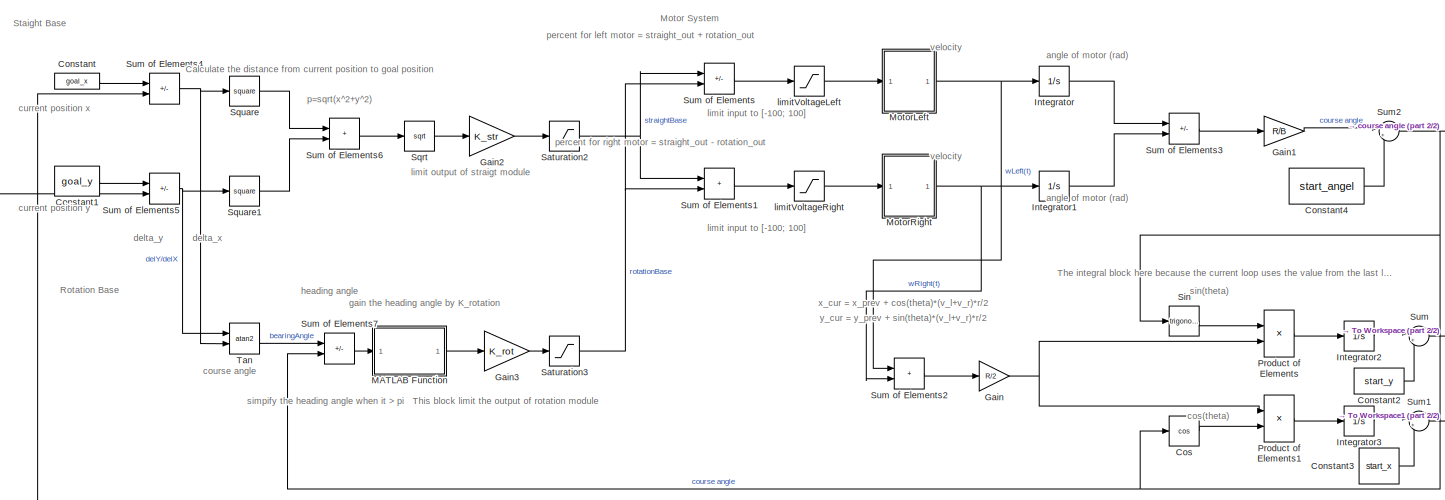
[diagram: root canvas - part 1/2, most of the canvas]
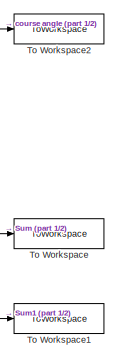
[diagram: root canvas - part 2/2, middle right region]
MODEL slx_19adb0c563d2
KIND model
CONFIG AbsTol = auto
CONFIG EnableMultiTasking = off
CONFIG FixedStep = 0.013
CONFIG MaxStep = auto
CONFIG MinStep = auto
CONFIG RelTol = 1e-3
CONFIG SampleTimeConstraint = Unconstrained
CONFIG SolverName = ode15s
CONFIG StartTime = 0.0
CONFIG StopTime = 15
WORKSPACE source: mxarray member
WORKSPACE U_max = 3.35
BLOCK [Constant] Constant
  Value = goal_x
BLOCK [Constant] Constant1
  Value = goal_y
BLOCK [Constant] Constant2
  Value = start_y
BLOCK [Constant] Constant3
  Value = start_x
BLOCK [Constant] Constant4
  Value = start_angel
BLOCK [Trigonometry] Cos
  Operator = cos
  Ports = [1, 1]
BLOCK [Gain] Gain
  Gain = R/2
BLOCK [Gain] Gain1
  Gain = R/B
BLOCK [Gain] Gain2
  Gain = K_str
BLOCK [Gain] Gain3
  Gain = K_rot
BLOCK [Integrator] Integrator
  Ports = [1, 1]
BLOCK [Integrator] Integrator1
  Ports = [1, 1]
BLOCK [Integrator] Integrator2
  Ports = [1, 1]
BLOCK [Integrator] Integrator3
  Ports = [1, 1]
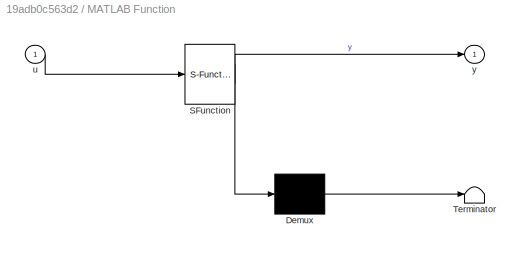
BLOCK [SubSystem] MATLAB Function
  ErrorFcn = Stateflow.Translate.translate
  PermitHierarchicalResolution = ExplicitOnly
  Ports = [1, 1]
  RequestExecContextInheritance = off
  SFBlockType = MATLAB Function
  TreatAsAtomicUnit = on
BLOCK [Demux] MATLAB Function/ Demux 
  Outputs = 1
  Ports = [1, 1]
BLOCK [S-Function] MATLAB Function/ SFunction 
  EnableBusSupport = off
  FunctionName = sf_sfun
  PortCounts = [1 2]
  Ports = [1, 2]
  SFcnIsStateOwnerBlock = off
  SFunctionDeploymentMode = off
  Tag = Stateflow S-Function 2
BLOCK [Terminator] MATLAB Function/ Terminator 
BLOCK [Inport] MATLAB Function/u
BLOCK [Outport] MATLAB Function/y
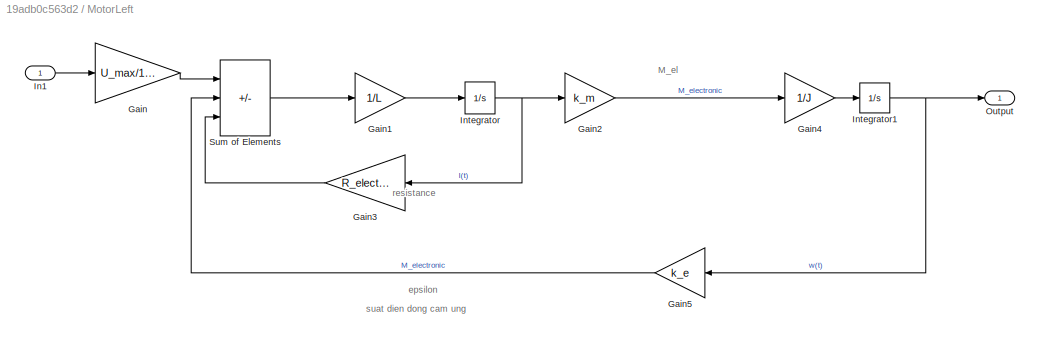
BLOCK [SubSystem] MotorLeft
  Ports = [1, 1]
  RequestExecContextInheritance = off
BLOCK [Gain] MotorLeft/Gain
  Gain = U_max/100
BLOCK [Gain] MotorLeft/Gain1
  Gain = 1/L
BLOCK [Gain] MotorLeft/Gain2
  Gain = k_m
BLOCK [Gain] MotorLeft/Gain3
  Gain = R_electronic
BLOCK [Gain] MotorLeft/Gain4
  Gain = 1/J
BLOCK [Gain] MotorLeft/Gain5
  Gain = k_e
BLOCK [Inport] MotorLeft/In1
BLOCK [Integrator] MotorLeft/Integrator
  Ports = [1, 1]
BLOCK [Integrator] MotorLeft/Integrator1
  Ports = [1, 1]
BLOCK [Outport] MotorLeft/Output
BLOCK [Sum] MotorLeft/Sum of Elements
  IconShape = rectangular
  Inputs = +--
  Ports = [3, 1]
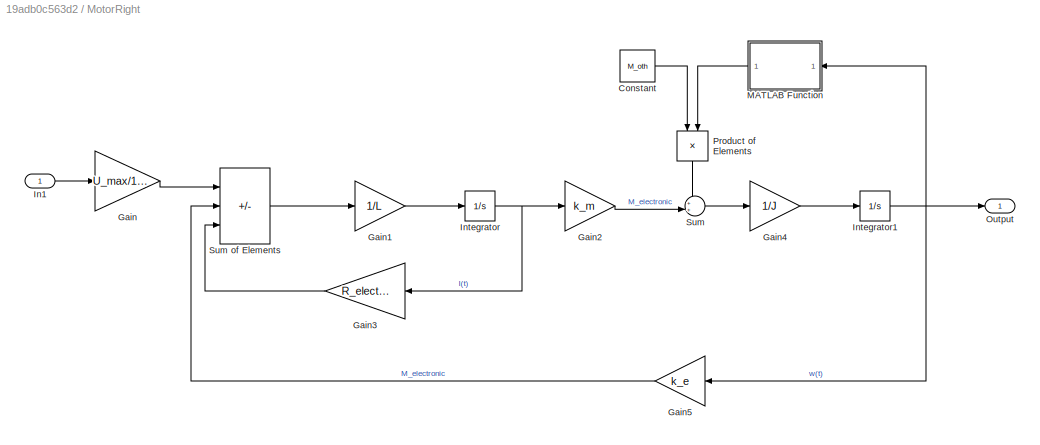
BLOCK [SubSystem] MotorRight
  Ports = [1, 1]
  RequestExecContextInheritance = off
BLOCK [Constant] MotorRight/Constant
  Value = M_oth
BLOCK [Gain] MotorRight/Gain
  Gain = U_max/100
BLOCK [Gain] MotorRight/Gain1
  Gain = 1/L
BLOCK [Gain] MotorRight/Gain2
  Gain = k_m
BLOCK [Gain] MotorRight/Gain3
  Gain = R_electronic
BLOCK [Gain] MotorRight/Gain4
  Gain = 1/J
BLOCK [Gain] MotorRight/Gain5
  Gain = k_e
BLOCK [Inport] MotorRight/In1
BLOCK [Integrator] MotorRight/Integrator
  Ports = [1, 1]
BLOCK [Integrator] MotorRight/Integrator1
  Ports = [1, 1]
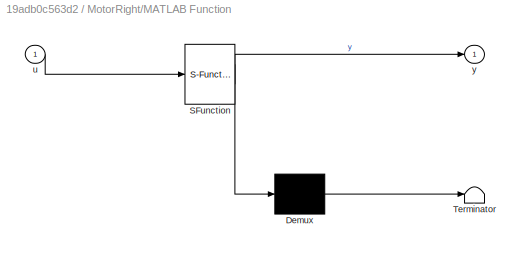
BLOCK [SubSystem] MotorRight/MATLAB Function
  ErrorFcn = Stateflow.Translate.translate
  PermitHierarchicalResolution = ExplicitOnly
  Ports = [1, 1]
  RequestExecContextInheritance = off
  SFBlockType = MATLAB Function
  TreatAsAtomicUnit = on
BLOCK [Demux] MotorRight/MATLAB Function/ Demux 
  Outputs = 1
  Ports = [1, 1]
BLOCK [S-Function] MotorRight/MATLAB Function/ SFunction 
  EnableBusSupport = off
  FunctionName = sf_sfun
  PortCounts = [1 2]
  Ports = [1, 2]
  SFcnIsStateOwnerBlock = off
  SFunctionDeploymentMode = off
  Tag = Stateflow S-Function 1
BLOCK [Terminator] MotorRight/MATLAB Function/ Terminator 
BLOCK [Inport] MotorRight/MATLAB Function/u
BLOCK [Outport] MotorRight/MATLAB Function/y
BLOCK [Outport] MotorRight/Output
BLOCK [Product] MotorRight/Product of Elements
  Inputs = **
  NameLocation = left
  Ports = [2, 1]
BLOCK [Sum] MotorRight/Sum
  Inputs = ++|
  Ports = [2, 1]
BLOCK [Sum] MotorRight/Sum of Elements
  IconShape = rectangular
  Inputs = +--
  Ports = [3, 1]
BLOCK [Product] Product of Elements
  Inputs = **
  Ports = [2, 1]
BLOCK [Product] Product of Elements1
  Inputs = **
  Ports = [2, 1]
BLOCK [Saturate] Saturation2
  LowerLimit = -60
  UpperLimit = 60
BLOCK [Saturate] Saturation3
  LowerLimit = -40
  UpperLimit = 40
BLOCK [Trigonometry] Sin
  Ports = [1, 1]
BLOCK [Sqrt] Sqrt
BLOCK [Math] Square
  Operator = square
  Ports = [1, 1]
BLOCK [Math] Square1
  Operator = square
  Ports = [1, 1]
BLOCK [Sum] Sum
  Inputs = |++
  Ports = [2, 1]
BLOCK [Sum] Sum of Elements
  IconShape = rectangular
  Inputs = +-
  Ports = [2, 1]
BLOCK [Sum] Sum of Elements1
  IconShape = rectangular
  Ports = [2, 1]
BLOCK [Sum] Sum of Elements2
  IconShape = rectangular
  Ports = [2, 1]
BLOCK [Sum] Sum of Elements3
  IconShape = rectangular
  Inputs = -+
  Ports = [2, 1]
BLOCK [Sum] Sum of Elements4
  IconShape = rectangular
  Inputs = +-
  Ports = [2, 1]
BLOCK [Sum] Sum of Elements5
  IconShape = rectangular
  Inputs = +-
  Ports = [2, 1]
BLOCK [Sum] Sum of Elements6
  IconShape = rectangular
  Ports = [2, 1]
BLOCK [Sum] Sum of Elements7
  IconShape = rectangular
  Inputs = +-
  Ports = [2, 1]
BLOCK [Sum] Sum1
  Inputs = |++
  Ports = [2, 1]
BLOCK [Sum] Sum2
  Inputs = |++
  Ports = [2, 1]
BLOCK [Trigonometry] Tan
  Operator = atan2
  OutputSignalType = real
  Ports = [2, 1]
BLOCK [ToWorkspace] To Workspace
  FixptAsFi = on
  MaxDataPoints = inf
  Ports = [1]
  SampleTime = -1
  SaveFormat = Timeseries
  VariableName = Y
BLOCK [ToWorkspace] To Workspace1
  FixptAsFi = on
  MaxDataPoints = inf
  Ports = [1]
  SampleTime = -1
  SaveFormat = Timeseries
  VariableName = X
BLOCK [ToWorkspace] To Workspace2
  FixptAsFi = on
  MaxDataPoints = inf
  Ports = [1]
  SampleTime = -1
  SaveFormat = Timeseries
  VariableName = angel
BLOCK [Saturate] limitVoltageLeft
  LowerLimit = -100
  UpperLimit = 100
BLOCK [Saturate] limitVoltageRight
  LowerLimit = -100
  UpperLimit = 100
ANNOTATION (root): Calculate the distance from current position to goal position
ANNOTATION (root): Motor System
ANNOTATION (root): Rotation Base
ANNOTATION (root): Staight Base
ANNOTATION (root): The integral block here because the current loop uses the value from the last loop
ANNOTATION (root): This block limit the output of rotation module
ANNOTATION (root): angle of motor (rad)
ANNOTATION (root): cos(theta)
ANNOTATION (root): course angle
ANNOTATION (root): current position x
ANNOTATION (root): current position y
ANNOTATION (root): delta_x
ANNOTATION (root): delta_y
ANNOTATION (root): gain the heading angle by K_rotation
ANNOTATION (root): heading angle
ANNOTATION (root): limit input to [-100; 100]
ANNOTATION (root): limit output of straigt module
ANNOTATION (root): p=sqrt(x^2+y^2)
ANNOTATION (root): percent for left motor = straight_out + rotation_out
ANNOTATION (root): percent for right motor = straight_out - rotation_out
ANNOTATION (root): simpify the heading angle when it > pi
ANNOTATION (root): sin(theta)
ANNOTATION (root): velocity
ANNOTATION (root): x_cur = x_prev + cos(theta)*(v_l+v_r)*r/2
ANNOTATION (root): y_cur = y_prev + sin(theta)*(v_l+v_r)*r/2
ANNOTATION MotorLeft: M_el
ANNOTATION MotorLeft: epsilon
ANNOTATION MotorLeft: resistance
ANNOTATION MotorLeft: suat dien dong cam ung
LINE Constant1:1 -> Sum of Elements5:1
LINE Constant2:1 -> Sum:2
LINE Constant3:1 -> Sum1:2
LINE Constant4:1 -> Sum2:2
LINE Constant:1 -> Sum of Elements4:1
LINE Cos:1 -> Product of Elements1:2
LINE Gain1:1 -> Sum2:1
LINE Gain2:1 -> Saturation2:1
LINE Gain3:1 -> Saturation3:1
NET Gain:1 -> Product of Elements1:1, Product of Elements:2
LINE Integrator1:1 -> Sum of Elements3:2
LINE Integrator2:1 -> Sum:1
LINE Integrator3:1 -> Sum1:1
LINE Integrator:1 -> Sum of Elements3:1
LINE MATLAB Function:1 -> Gain3:1
LINE MotorLeft/Gain1:1 -> MotorLeft/Integrator:1
LINE MotorLeft/Gain2:1 -> MotorLeft/Gain4:1
LINE MotorLeft/Gain3:1 -> MotorLeft/Sum of Elements:3
LINE MotorLeft/Gain4:1 -> MotorLeft/Integrator1:1
LINE MotorLeft/Gain5:1 -> MotorLeft/Sum of Elements:2
LINE MotorLeft/Gain:1 -> MotorLeft/Sum of Elements:1
LINE MotorLeft/In1:1 -> MotorLeft/Gain:1
NET MotorLeft/Integrator1:1 -> MotorLeft/Gain5:1, MotorLeft/Output:1
NET MotorLeft/Integrator:1 -> MotorLeft/Gain2:1, MotorLeft/Gain3:1
LINE MotorLeft/Sum of Elements:1 -> MotorLeft/Gain1:1
NET MotorLeft:1 -> Integrator:1, Sum of Elements2:1
LINE MotorRight/Constant:1 -> MotorRight/Product of Elements:1
LINE MotorRight/Gain1:1 -> MotorRight/Integrator:1
LINE MotorRight/Gain2:1 -> MotorRight/Sum:2
LINE MotorRight/Gain3:1 -> MotorRight/Sum of Elements:3
LINE MotorRight/Gain4:1 -> MotorRight/Integrator1:1
LINE MotorRight/Gain5:1 -> MotorRight/Sum of Elements:2
LINE MotorRight/Gain:1 -> MotorRight/Sum of Elements:1
LINE MotorRight/In1:1 -> MotorRight/Gain:1
NET MotorRight/Integrator1:1 -> MotorRight/Gain5:1, MotorRight/MATLAB Function:1, MotorRight/Output:1
NET MotorRight/Integrator:1 -> MotorRight/Gain2:1, MotorRight/Gain3:1
LINE MotorRight/MATLAB Function:1 -> MotorRight/Product of Elements:2
LINE MotorRight/Product of Elements:1 -> MotorRight/Sum:1
LINE MotorRight/Sum of Elements:1 -> MotorRight/Gain1:1
LINE MotorRight/Sum:1 -> MotorRight/Gain4:1
NET MotorRight:1 -> Integrator1:1, Sum of Elements2:2
LINE Product of Elements1:1 -> Integrator3:1
LINE Product of Elements:1 -> Integrator2:1
NET Saturation2:1 -> Sum of Elements1:1, Sum of Elements:1
NET Saturation3:1 -> Sum of Elements1:2, Sum of Elements:2
LINE Sin:1 -> Product of Elements:1
LINE Sqrt:1 -> Gain2:1
LINE Square1:1 -> Sum of Elements6:2
LINE Square:1 -> Sum of Elements6:1
LINE Sum of Elements1:1 -> limitVoltageRight:1
LINE Sum of Elements2:1 -> Gain:1
LINE Sum of Elements3:1 -> Gain1:1
NET Sum of Elements4:1 -> Square:1, Tan:2
NET Sum of Elements5:1 -> Square1:1, Tan:1
LINE Sum of Elements6:1 -> Sqrt:1
LINE Sum of Elements7:1 -> MATLAB Function:1
LINE Sum of Elements:1 -> limitVoltageLeft:1
NET Sum1:1 -> Sum of Elements4:2, To Workspace1:1
NET Sum2:1 -> Cos:1, Sin:1, Sum of Elements7:2, To Workspace2:1
NET Sum:1 -> Sum of Elements5:2, To Workspace:1
LINE Tan:1 -> Sum of Elements7:1
LINE limitVoltageLeft:1 -> MotorLeft:1
LINE limitVoltageRight:1 -> MotorRight:1
note: NET lines group one-source signal fan-out (src -> all destinations, sorted); 1:1 wires keep LINE
CHART MATLAB Function states=1 transitions=1
  STATE_LABEL 'eML_blk_kernel()'
  STATE_LABEL 'SCRIPT:\nfunction y = fcn(u)\nif abs(u) > pi\n    y = u - sign(u)*2*pi;\nelse\n    y = u;    \nend\n'
CHART MotorRight/MATLAB Function states=1 transitions=1
  STATE_LABEL 'eML_blk_kernel()'
  STATE_LABEL 'SCRIPT:\nfunction y = fcn(u)\n\ny = -sign(u);\n'
CHART  states=0 transitions=0
CHART  states=0 transitions=0
